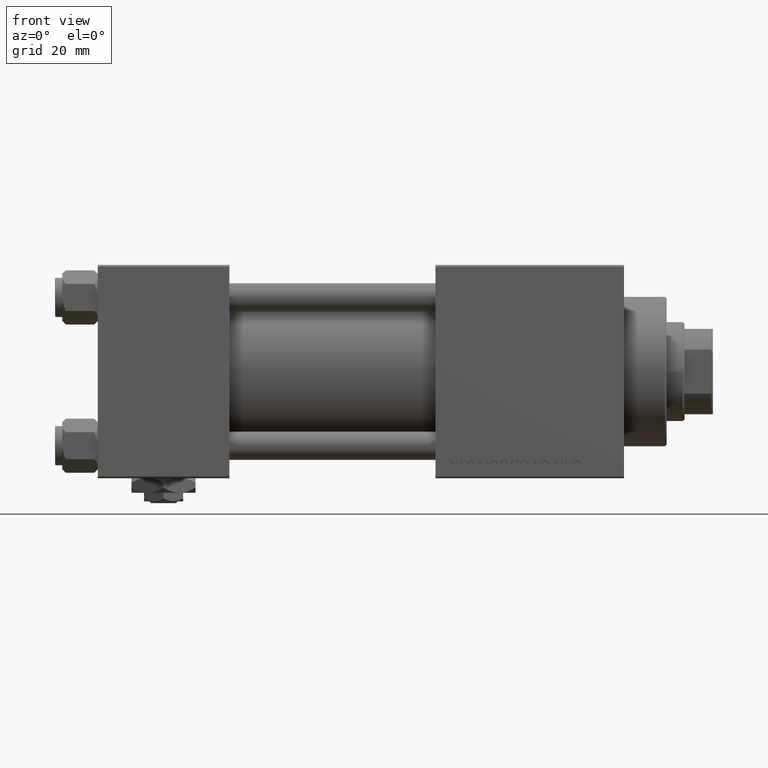
[diagram: clean part render]
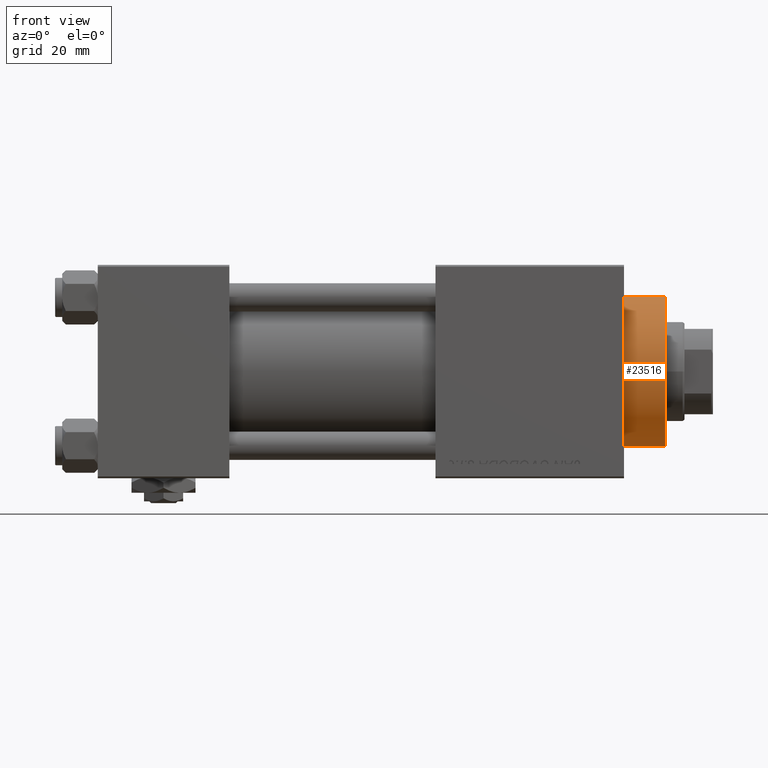
[diagram: same view with one face highlighted and labeled with its STEP entity id]
A machine part, front view. The second image highlights one B-rep face of the part: STEP entity #23516.
In plain terms, the highlighted cylindrical surface (partial cylindrical patch) has radius 21 mm, axis along (-1, -0, -0).
Its self-contained STEP definition (entity closure, byte-faithful):
#3812 = DIRECTION ( 'NONE',  ( -0.000000000000000000, -0.000000000000000000, -1.000000000000000000 ) ) ;
#4286 = VECTOR ( 'NONE', #32292, 1000.000000000000000 ) ;
#4424 = CARTESIAN_POINT ( 'NONE',  ( -21.00000000000000000, 0.000000000000000000, 40.70000000000000284 ) ) ;
#4854 = VERTEX_POINT ( 'NONE', #29403 ) ;
#5112 = DIRECTION ( 'NONE',  ( -1.000000000000000000, 0.000000000000000000, 0.000000000000000000 ) ) ;
#7715 = VERTEX_POINT ( 'NONE', #44433 ) ;
#8194 = ORIENTED_EDGE ( 'NONE', *, *, #47009, .F. ) ;
#8536 = CIRCLE ( 'NONE', #37909, 21.00000000000000000 ) ;
#9771 = ORIENTED_EDGE ( 'NONE', *, *, #48663, .T. ) ;
#10419 = ORIENTED_EDGE ( 'NONE', *, *, #44592, .T. ) ;
#12557 = VERTEX_POINT ( 'NONE', #23043 ) ;
#12689 = VERTEX_POINT ( 'NONE', #49543 ) ;
#12871 = CARTESIAN_POINT ( 'NONE',  ( 0.000000000000000000, 0.000000000000000000, 28.69999999999999929 ) ) ;
#14551 = AXIS2_PLACEMENT_3D ( 'NONE', #29283, #21890, #5112 ) ;
#16117 = VECTOR ( 'NONE', #3812, 1000.000000000000000 ) ;
#18888 = CARTESIAN_POINT ( 'NONE',  ( 0.000000000000000000, 0.000000000000000000, 40.19999999999998863 ) ) ;
#19201 = EDGE_CURVE ( 'NONE', #12557, #4854, #8536, .T. ) ;
#20348 = LINE ( 'NONE', #27450, #16117 ) ;
#21169 = CIRCLE ( 'NONE', #32971, 21.00000000000000000 ) ;
#21890 = DIRECTION ( 'NONE',  ( -0.000000000000000000, -0.000000000000000000, -1.000000000000000000 ) ) ;
#23043 = CARTESIAN_POINT ( 'NONE',  ( 21.00000000000000000, 2.571758278209441661E-15, 40.19999999999998863 ) ) ;
#23516 = ADVANCED_FACE ( 'NONE', ( #25844 ), #29025, .T. ) ;
#24947 = DIRECTION ( 'NONE',  ( 1.000000000000000000, 0.000000000000000000, 0.000000000000000000 ) ) ;
#25844 = FACE_OUTER_BOUND ( 'NONE', #31040, .T. ) ;
#27450 = CARTESIAN_POINT ( 'NONE',  ( 21.00000000000000000, 2.571758278209441661E-15, 40.70000000000000284 ) ) ;
#28902 = DIRECTION ( 'NONE',  ( 0.000000000000000000, 0.000000000000000000, 1.000000000000000000 ) ) ;
#29025 = CYLINDRICAL_SURFACE ( 'NONE', #14551, 21.00000000000000000 ) ;
#29283 = CARTESIAN_POINT ( 'NONE',  ( 0.000000000000000000, 0.000000000000000000, 40.70000000000000284 ) ) ;
#29403 = CARTESIAN_POINT ( 'NONE',  ( -21.00000000000000000, 0.000000000000000000, 40.19999999999998863 ) ) ;
#30191 = DIRECTION ( 'NONE',  ( 1.000000000000000000, 0.000000000000000000, 0.000000000000000000 ) ) ;
#31040 = EDGE_LOOP ( 'NONE', ( #8194, #36239, #10419, #9771 ) ) ;
#32292 = DIRECTION ( 'NONE',  ( -0.000000000000000000, -0.000000000000000000, -1.000000000000000000 ) ) ;
#32971 = AXIS2_PLACEMENT_3D ( 'NONE', #12871, #28902, #24947 ) ;
#36239 = ORIENTED_EDGE ( 'NONE', *, *, #19201, .T. ) ;
#37909 = AXIS2_PLACEMENT_3D ( 'NONE', #18888, #45957, #30191 ) ;
#40938 = LINE ( 'NONE', #4424, #4286 ) ;
#44433 = CARTESIAN_POINT ( 'NONE',  ( -21.00000000000000000, 0.000000000000000000, 28.69999999999999929 ) ) ;
#44592 = EDGE_CURVE ( 'NONE', #4854, #7715, #40938, .T. ) ;
#45957 = DIRECTION ( 'NONE',  ( 0.000000000000000000, 0.000000000000000000, -1.000000000000000000 ) ) ;
#47009 = EDGE_CURVE ( 'NONE', #12557, #12689, #20348, .T. ) ;
#48663 = EDGE_CURVE ( 'NONE', #7715, #12689, #21169, .T. ) ;
#49543 = CARTESIAN_POINT ( 'NONE',  ( 21.00000000000000000, 2.571758278209441661E-15, 28.69999999999999929 ) ) ;